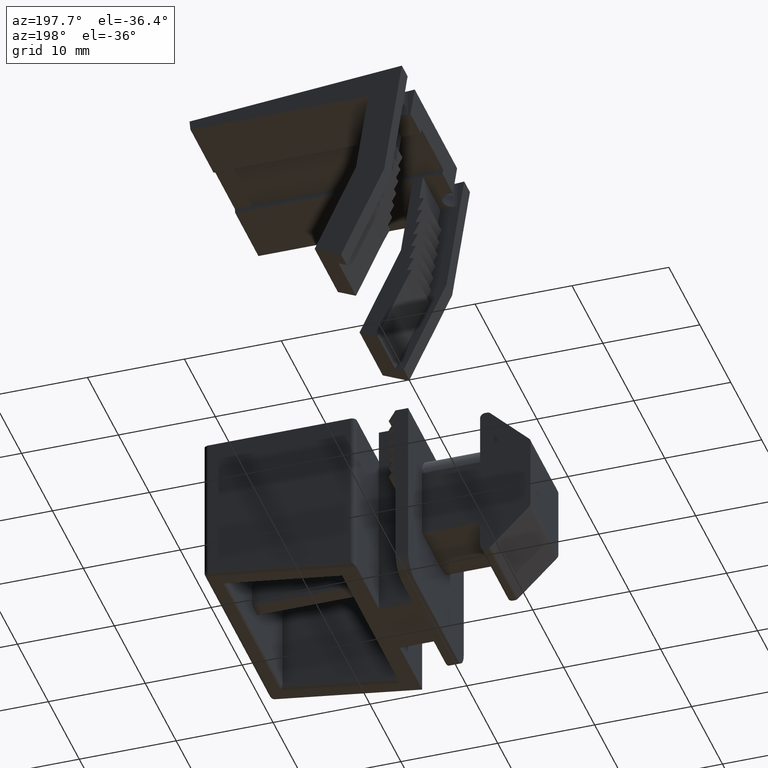
[diagram: clean part render]
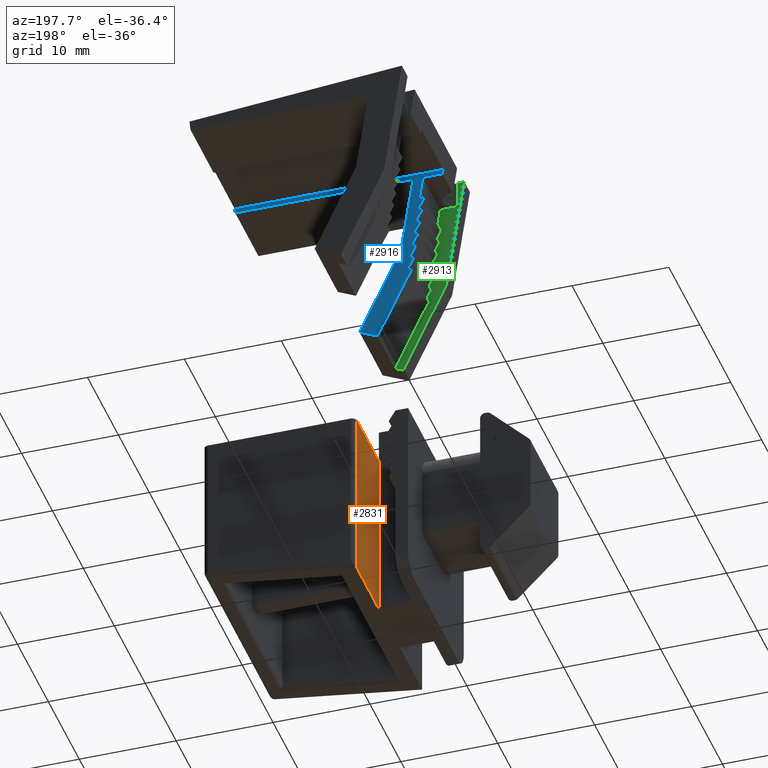
[diagram: same view with three faces highlighted in distinct colors, each labeled with its STEP entity id]
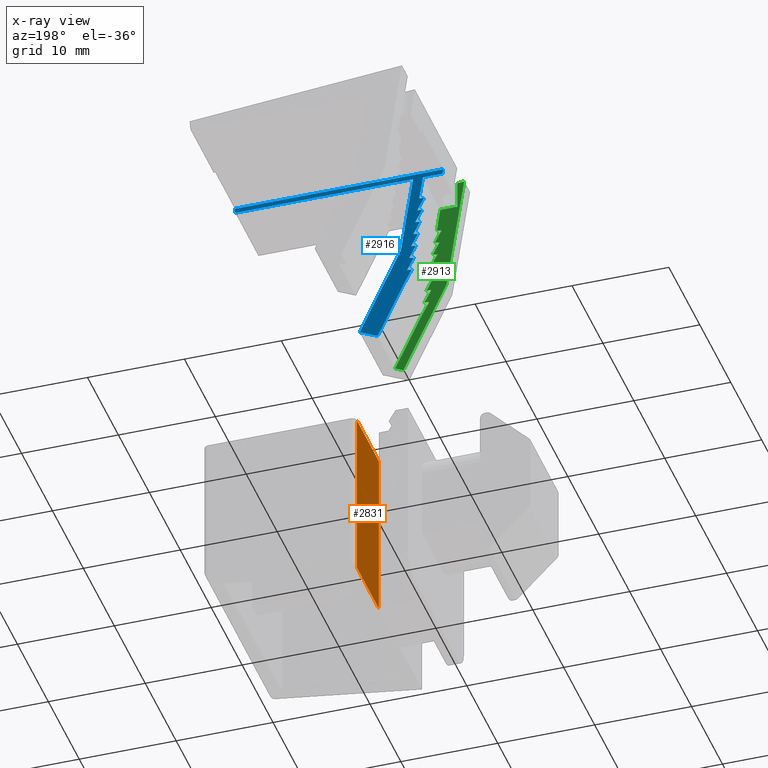
[diagram: x-ray of the same camera — body ghosted, the three highlighted faces saturated]
A machine part, auxiliary view with three faces highlighted in distinct colors.
The next image is the same camera in x-ray (body ghosted, the three faces saturated) — at least one of them is partly hidden behind the body in this view.
Their STEP definitions:

[orange] entity #2831 — the highlighted planar face has unit normal (-1, 0, 0).
#57=PLANE('',#3021);
#204=FACE_OUTER_BOUND('',#354,.T.);
#354=EDGE_LOOP('',(#2173,#2174,#2175,#2176));
#509=LINE('',#3933,#882);
#512=LINE('',#3951,#885);
#598=LINE('',#4177,#971);
#599=LINE('',#4178,#972);
#882=VECTOR('',#3163,7.1);
#885=VECTOR('',#3186,18.);
#971=VECTOR('',#3406,18.);
#972=VECTOR('',#3407,7.1);
#1255=VERTEX_POINT('',#3923);
#1259=VERTEX_POINT('',#3931);
#1264=VERTEX_POINT('',#3950);
#1337=VERTEX_POINT('',#4176);
#1533=EDGE_CURVE('',#1259,#1255,#509,.T.);
#1542=EDGE_CURVE('',#1255,#1264,#512,.T.);
#1654=EDGE_CURVE('',#1337,#1259,#598,.T.);
#1655=EDGE_CURVE('',#1264,#1337,#599,.T.);
#2173=ORIENTED_EDGE('',*,*,#1542,.F.);
#2174=ORIENTED_EDGE('',*,*,#1533,.F.);
#2175=ORIENTED_EDGE('',*,*,#1654,.F.);
#2176=ORIENTED_EDGE('',*,*,#1655,.F.);
#2831=ADVANCED_FACE('',(#204),#57,.T.);
#3021=AXIS2_PLACEMENT_3D('',#4175,#3404,#3405);
#3163=DIRECTION('',(0.,-1.,0.));
#3186=DIRECTION('',(0.,0.,-1.));
#3404=DIRECTION('center_axis',(-1.,0.,0.));
#3405=DIRECTION('ref_axis',(0.,0.,1.));
#3406=DIRECTION('',(0.,0.,1.));
#3407=DIRECTION('',(0.,1.,0.));
#3923=CARTESIAN_POINT('',(4.8,-10.5,19.5));
#3931=CARTESIAN_POINT('',(4.8,-3.4,19.5));
#3933=CARTESIAN_POINT('',(4.8,0.,19.5));
#3950=CARTESIAN_POINT('',(4.8,-10.5,1.5));
#3951=CARTESIAN_POINT('',(4.8,-10.5,5.73344712558717));
#4175=CARTESIAN_POINT('Origin',(4.8,0.,1.5));
#4176=CARTESIAN_POINT('',(4.8,-3.4,1.5));
#4177=CARTESIAN_POINT('',(4.8,-3.4,0.));
#4178=CARTESIAN_POINT('',(4.8,0.,1.5));

[blue] entity #2916 — the highlighted planar face has unit normal (0, -1, 0).
#140=PLANE('',#3111);
#289=FACE_OUTER_BOUND('',#440,.T.);
#440=EDGE_LOOP('',(#2635,#2636,#2637,#2638,#2639,#2640,#2641,#2642,#2643,
#2644,#2645,#2646,#2647,#2648,#2649,#2650,#2651,#2652,#2653,#2654,#2655,
#2656,#2657,#2658));
#712=LINE('',#4417,#1085);
#723=LINE('',#4438,#1096);
#724=LINE('',#4442,#1097);
#728=LINE('',#4450,#1101);
#735=LINE('',#4465,#1108);
#738=LINE('',#4471,#1111);
#744=LINE('',#4483,#1117);
#747=LINE('',#4489,#1120);
#753=LINE('',#4501,#1126);
#756=LINE('',#4507,#1129);
#762=LINE('',#4519,#1135);
#765=LINE('',#4525,#1138);
#771=LINE('',#4537,#1144);
#774=LINE('',#4543,#1147);
#780=LINE('',#4555,#1153);
#783=LINE('',#4561,#1156);
#789=LINE('',#4573,#1162);
#792=LINE('',#4578,#1165);
#835=LINE('',#4662,#1208);
#836=LINE('',#4664,#1209);
#837=LINE('',#4666,#1210);
#838=LINE('',#4668,#1211);
#839=LINE('',#4670,#1212);
#840=LINE('',#4671,#1213);
#1085=VECTOR('',#3620,2.02246162661022);
#1096=VECTOR('',#3635,0.505615406652557);
#1097=VECTOR('',#3638,1.51354429288694);
#1101=VECTOR('',#3644,0.5);
#1108=VECTOR('',#3655,0.5);
#1111=VECTOR('',#3660,1.51354429288694);
#1117=VECTOR('',#3670,1.51354429288693);
#1120=VECTOR('',#3675,0.5);
#1126=VECTOR('',#3685,0.500000000000001);
#1129=VECTOR('',#3690,1.51354429288694);
#1135=VECTOR('',#3700,1.51354429288693);
#1138=VECTOR('',#3705,0.5);
#1144=VECTOR('',#3715,0.5);
#1147=VECTOR('',#3720,1.51354429288694);
#1153=VECTOR('',#3730,1.51354429288694);
#1156=VECTOR('',#3735,6.59999660380867);
#1162=VECTOR('',#3745,0.5);
#1165=VECTOR('',#3750,2.5);
#1208=VECTOR('',#3823,21.5101234316413);
#1209=VECTOR('',#3824,0.501909918771676);
#1210=VECTOR('',#3825,18.3575405393417);
#1211=VECTOR('',#3826,8.5);
#1212=VECTOR('',#3827,9.99999999999999);
#1213=VECTOR('',#3828,2.06403166974845);
#1412=VERTEX_POINT('',#4414);
#1413=VERTEX_POINT('',#4416);
#1421=VERTEX_POINT('',#4436);
#1422=VERTEX_POINT('',#4440);
#1423=VERTEX_POINT('',#4441);
#1426=VERTEX_POINT('',#4449);
#1432=VERTEX_POINT('',#4464);
#1434=VERTEX_POINT('',#4470);
#1438=VERTEX_POINT('',#4482);
#1440=VERTEX_POINT('',#4488);
#1444=VERTEX_POINT('',#4500);
#1446=VERTEX_POINT('',#4506);
#1450=VERTEX_POINT('',#4518);
#1452=VERTEX_POINT('',#4524);
#1456=VERTEX_POINT('',#4536);
#1458=VERTEX_POINT('',#4542);
#1462=VERTEX_POINT('',#4554);
#1464=VERTEX_POINT('',#4560);
#1468=VERTEX_POINT('',#4572);
#1495=VERTEX_POINT('',#4661);
#1496=VERTEX_POINT('',#4663);
#1497=VERTEX_POINT('',#4665);
#1498=VERTEX_POINT('',#4667);
#1499=VERTEX_POINT('',#4669);
#1772=EDGE_CURVE('',#1413,#1412,#712,.T.);
#1783=EDGE_CURVE('',#1421,#1412,#723,.T.);
#1784=EDGE_CURVE('',#1422,#1423,#724,.T.);
#1788=EDGE_CURVE('',#1426,#1422,#728,.T.);
#1795=EDGE_CURVE('',#1423,#1432,#735,.T.);
#1798=EDGE_CURVE('',#1434,#1426,#738,.T.);
#1804=EDGE_CURVE('',#1432,#1438,#744,.T.);
#1807=EDGE_CURVE('',#1440,#1434,#747,.T.);
#1813=EDGE_CURVE('',#1438,#1444,#753,.T.);
#1816=EDGE_CURVE('',#1446,#1440,#756,.T.);
#1822=EDGE_CURVE('',#1444,#1450,#762,.T.);
#1825=EDGE_CURVE('',#1452,#1446,#765,.T.);
#1831=EDGE_CURVE('',#1450,#1456,#771,.T.);
#1834=EDGE_CURVE('',#1458,#1452,#774,.T.);
#1840=EDGE_CURVE('',#1456,#1462,#780,.T.);
#1843=EDGE_CURVE('',#1464,#1458,#783,.T.);
#1849=EDGE_CURVE('',#1462,#1468,#789,.T.);
#1852=EDGE_CURVE('',#1468,#1413,#792,.T.);
#1895=EDGE_CURVE('',#1495,#1421,#835,.T.);
#1896=EDGE_CURVE('',#1496,#1495,#836,.T.);
#1897=EDGE_CURVE('',#1497,#1496,#837,.T.);
#1898=EDGE_CURVE('',#1498,#1497,#838,.T.);
#1899=EDGE_CURVE('',#1499,#1498,#839,.T.);
#1900=EDGE_CURVE('',#1464,#1499,#840,.T.);
#2635=ORIENTED_EDGE('',*,*,#1843,.T.);
#2636=ORIENTED_EDGE('',*,*,#1834,.T.);
#2637=ORIENTED_EDGE('',*,*,#1825,.T.);
#2638=ORIENTED_EDGE('',*,*,#1816,.T.);
#2639=ORIENTED_EDGE('',*,*,#1807,.T.);
#2640=ORIENTED_EDGE('',*,*,#1798,.T.);
#2641=ORIENTED_EDGE('',*,*,#1788,.T.);
#2642=ORIENTED_EDGE('',*,*,#1784,.T.);
#2643=ORIENTED_EDGE('',*,*,#1795,.T.);
#2644=ORIENTED_EDGE('',*,*,#1804,.T.);
#2645=ORIENTED_EDGE('',*,*,#1813,.T.);
#2646=ORIENTED_EDGE('',*,*,#1822,.T.);
#2647=ORIENTED_EDGE('',*,*,#1831,.T.);
#2648=ORIENTED_EDGE('',*,*,#1840,.T.);
#2649=ORIENTED_EDGE('',*,*,#1849,.T.);
#2650=ORIENTED_EDGE('',*,*,#1852,.T.);
#2651=ORIENTED_EDGE('',*,*,#1772,.T.);
#2652=ORIENTED_EDGE('',*,*,#1783,.F.);
#2653=ORIENTED_EDGE('',*,*,#1895,.F.);
#2654=ORIENTED_EDGE('',*,*,#1896,.F.);
#2655=ORIENTED_EDGE('',*,*,#1897,.F.);
#2656=ORIENTED_EDGE('',*,*,#1898,.F.);
#2657=ORIENTED_EDGE('',*,*,#1899,.F.);
#2658=ORIENTED_EDGE('',*,*,#1900,.F.);
#2916=ADVANCED_FACE('',(#289),#140,.F.);
#3111=AXIS2_PLACEMENT_3D('',#4660,#3821,#3822);
#3620=DIRECTION('',(-1.,0.,0.));
#3635=DIRECTION('',(0.148623083142968,-0.988893917039173,0.));
#3638=DIRECTION('',(-0.466960664478303,0.884278088516266,0.));
#3644=DIRECTION('',(0.988893917039173,0.148623083142969,0.));
#3655=DIRECTION('',(0.988893917039173,0.148623083142967,0.));
#3660=DIRECTION('',(-0.466960664478303,0.884278088516266,0.));
#3670=DIRECTION('',(-0.466960664478303,0.884278088516266,0.));
#3675=DIRECTION('',(0.988893917039173,0.148623083142967,0.));
#3685=DIRECTION('',(0.988893917039173,0.148623083142969,0.));
#3690=DIRECTION('',(-0.466960664478303,0.884278088516267,0.));
#3700=DIRECTION('',(-0.466960664478303,0.884278088516266,0.));
#3705=DIRECTION('',(0.988893917039173,0.148623083142967,0.));
#3715=DIRECTION('',(0.988893917039173,0.148623083142968,0.));
#3720=DIRECTION('',(-0.466960664478303,0.884278088516266,0.));
#3730=DIRECTION('',(-0.466960664478303,0.884278088516266,0.));
#3735=DIRECTION('',(-0.426511671735571,0.904482058347941,0.));
#3745=DIRECTION('',(0.988893917039173,0.148623083142967,0.));
#3750=DIRECTION('',(-0.148623083142968,0.988893917039173,0.));
#3821=DIRECTION('center_axis',(0.,0.,1.));
#3822=DIRECTION('ref_axis',(1.,0.,0.));
#3823=DIRECTION('',(-1.,6.45174717472811E-18,0.));
#3824=DIRECTION('',(0.0871557427476577,0.996194698091746,0.));
#3825=DIRECTION('',(1.,0.,0.));
#3826=DIRECTION('',(-0.148623083142968,0.988893917039173,0.));
#3827=DIRECTION('',(-0.426511671735571,0.904482058347941,0.));
#3828=DIRECTION('',(0.904482058347941,0.426511671735571,0.));
#4414=CARTESIAN_POINT('',(-3.03369243991533,0.,3.5));
#4416=CARTESIAN_POINT('',(-1.01123081330511,0.,3.5));
#4417=CARTESIAN_POINT('',(1.78552160355044,0.,3.5));
#4436=CARTESIAN_POINT('',(-3.10883856053662,0.500000000000002,3.5));
#4438=CARTESIAN_POINT('',(-2.812631945661,-1.47087096730116,3.5));
#4440=CARTESIAN_POINT('',(0.20960165536927,-8.12305717567892,3.5));
#4441=CARTESIAN_POINT('',(-0.497163993354557,-6.78466312148015,3.5));
#4442=CARTESIAN_POINT('',(0.00913192064465107,-7.74342992372248,3.5));
#4449=CARTESIAN_POINT('',(-0.284845303150317,-8.1973687172504,3.5));
#4450=CARTESIAN_POINT('',(2.34145967696977,-7.80265545560161,3.5));
#4464=CARTESIAN_POINT('',(-0.00271703483497039,-6.71035157990867,3.5));
#4465=CARTESIAN_POINT('',(2.12914098676552,-6.38994985983137,3.5));
#4470=CARTESIAN_POINT('',(0.42192034557351,-9.53576277144917,3.5));
#4471=CARTESIAN_POINT('',(-0.0933670500525913,-8.55996890292313,3.5));
#4482=CARTESIAN_POINT('',(-0.709482683558797,-5.37195752570991,3.5));
#4483=CARTESIAN_POINT('',(0.111630891341893,-6.92689094452184,3.5));
#4488=CARTESIAN_POINT('',(-0.0725266129460765,-9.61007431302065,3.5));
#4489=CARTESIAN_POINT('',(2.553778367174,-9.21536105137186,3.5));
#4500=CARTESIAN_POINT('',(-0.21503572503921,-5.29764598413843,3.5));
#4501=CARTESIAN_POINT('',(1.91682229656128,-4.97724426406112,3.5));
#4506=CARTESIAN_POINT('',(0.63423903577775,-10.9484683672194,3.5));
#4507=CARTESIAN_POINT('',(-0.195866020749833,-9.37650788212377,3.5));
#4518=CARTESIAN_POINT('',(-0.921801373763037,-3.95925192993966,3.5));
#4519=CARTESIAN_POINT('',(0.214129862039134,-6.1103519653212,3.5));
#4524=CARTESIAN_POINT('',(0.139792077258164,-11.0227799087909,3.5));
#4525=CARTESIAN_POINT('',(2.76609705737824,-10.6280666471421,3.5));
#4536=CARTESIAN_POINT('',(-0.42735441524345,-3.88494038836818,3.5));
#4537=CARTESIAN_POINT('',(1.70450360635704,-3.56453866829087,3.5));
#4542=CARTESIAN_POINT('',(0.84655772598199,-12.3611739629897,3.5));
#4543=CARTESIAN_POINT('',(-0.298364991447074,-10.1930468613244,3.5));
#4554=CARTESIAN_POINT('',(-1.13412006396728,-2.54654633416942,3.5));
#4555=CARTESIAN_POINT('',(0.316628832736376,-5.29381298612056,3.5));
#4560=CARTESIAN_POINT('',(3.66153331092152,-18.3307524762919,3.5));
#4561=CARTESIAN_POINT('',(1.14368098200046,-12.9912684527678,3.5));
#4572=CARTESIAN_POINT('',(-0.639673105447691,-2.47223479259793,3.5));
#4573=CARTESIAN_POINT('',(1.49218491615281,-2.15183307252063,3.5));
#4578=CARTESIAN_POINT('',(-0.407781043381144,-4.01517579972727,3.5));
#4660=CARTESIAN_POINT('Origin',(4.58227402040598,-4.84300182513052,3.5));
#4661=CARTESIAN_POINT('',(18.4012848711046,0.500000000000001,3.5));
#4662=CARTESIAN_POINT('',(18.4012848711046,0.500000000000001,3.5));
#4663=CARTESIAN_POINT('',(18.3575405393417,0.,3.5));
#4664=CARTESIAN_POINT('',(18.0949766161792,-3.0011193745652,3.5));
#4665=CARTESIAN_POINT('',(0.,0.,3.5));
#4666=CARTESIAN_POINT('',(2.29113701020299,0.,3.5));
#4667=CARTESIAN_POINT('',(1.26329620671523,-8.40559829483297,3.5));
#4668=CARTESIAN_POINT('',(1.0381505712199,-6.90754600927331,3.5));
#4669=CARTESIAN_POINT('',(5.52841292407093,-17.4504188783124,3.5));
#4670=CARTESIAN_POINT('',(3.01056059514988,-12.1109348547882,3.5));
#4671=CARTESIAN_POINT('',(6.2164727136376,-17.125961882849,3.5));

[green] entity #2913 — the highlighted planar face has unit normal (0, -1, 0).
#137=PLANE('',#3108);
#286=FACE_OUTER_BOUND('',#437,.T.);
#437=EDGE_LOOP('',(#2603,#2604,#2605,#2606,#2607,#2608,#2609,#2610,#2611,
#2612,#2613,#2614,#2615,#2616,#2617,#2618,#2619,#2620,#2621,#2622,#2623,
#2624));
#705=LINE('',#4397,#1078);
#714=LINE('',#4420,#1087);
#726=LINE('',#4446,#1099);
#730=LINE('',#4453,#1103);
#736=LINE('',#4467,#1109);
#740=LINE('',#4474,#1113);
#745=LINE('',#4485,#1118);
#749=LINE('',#4492,#1122);
#754=LINE('',#4503,#1127);
#758=LINE('',#4510,#1131);
#763=LINE('',#4521,#1136);
#767=LINE('',#4528,#1140);
#772=LINE('',#4539,#1145);
#776=LINE('',#4546,#1149);
#781=LINE('',#4557,#1154);
#785=LINE('',#4564,#1158);
#790=LINE('',#4575,#1163);
#793=LINE('',#4579,#1166);
#826=LINE('',#4645,#1199);
#827=LINE('',#4647,#1200);
#828=LINE('',#4648,#1201);
#829=LINE('',#4649,#1202);
#1078=VECTOR('',#3603,2.85237897407208);
#1087=VECTOR('',#3622,1.76035626262396);
#1099=VECTOR('',#3640,1.51354429288694);
#1103=VECTOR('',#3646,0.5);
#1109=VECTOR('',#3656,0.5);
#1113=VECTOR('',#3662,1.51354429288694);
#1118=VECTOR('',#3671,1.51354429288693);
#1122=VECTOR('',#3677,0.5);
#1127=VECTOR('',#3686,0.5);
#1131=VECTOR('',#3692,1.51354429288694);
#1136=VECTOR('',#3701,1.51354429288693);
#1140=VECTOR('',#3707,0.5);
#1145=VECTOR('',#3716,0.5);
#1149=VECTOR('',#3722,1.51354429288694);
#1154=VECTOR('',#3731,1.51354429288694);
#1158=VECTOR('',#3737,6.59999660380867);
#1163=VECTOR('',#3746,0.5);
#1166=VECTOR('',#3751,2.5);
#1199=VECTOR('',#3808,10.4403065089105);
#1200=VECTOR('',#3809,12.3375266051042);
#1201=VECTOR('',#3810,0.702673886280343);
#1202=VECTOR('',#3811,0.935968330251548);
#1404=VERTEX_POINT('',#4393);
#1405=VERTEX_POINT('',#4395);
#1414=VERTEX_POINT('',#4418);
#1424=VERTEX_POINT('',#4443);
#1425=VERTEX_POINT('',#4445);
#1427=VERTEX_POINT('',#4451);
#1433=VERTEX_POINT('',#4466);
#1435=VERTEX_POINT('',#4472);
#1439=VERTEX_POINT('',#4484);
#1441=VERTEX_POINT('',#4490);
#1445=VERTEX_POINT('',#4502);
#1447=VERTEX_POINT('',#4508);
#1451=VERTEX_POINT('',#4520);
#1453=VERTEX_POINT('',#4526);
#1457=VERTEX_POINT('',#4538);
#1459=VERTEX_POINT('',#4544);
#1463=VERTEX_POINT('',#4556);
#1465=VERTEX_POINT('',#4562);
#1469=VERTEX_POINT('',#4574);
#1489=VERTEX_POINT('',#4643);
#1490=VERTEX_POINT('',#4644);
#1491=VERTEX_POINT('',#4646);
#1763=EDGE_CURVE('',#1405,#1404,#705,.T.);
#1774=EDGE_CURVE('',#1414,#1405,#714,.T.);
#1786=EDGE_CURVE('',#1424,#1425,#726,.T.);
#1790=EDGE_CURVE('',#1427,#1424,#730,.T.);
#1796=EDGE_CURVE('',#1425,#1433,#736,.T.);
#1800=EDGE_CURVE('',#1435,#1427,#740,.T.);
#1805=EDGE_CURVE('',#1433,#1439,#745,.T.);
#1809=EDGE_CURVE('',#1441,#1435,#749,.T.);
#1814=EDGE_CURVE('',#1439,#1445,#754,.T.);
#1818=EDGE_CURVE('',#1447,#1441,#758,.T.);
#1823=EDGE_CURVE('',#1445,#1451,#763,.T.);
#1827=EDGE_CURVE('',#1453,#1447,#767,.T.);
#1832=EDGE_CURVE('',#1451,#1457,#772,.T.);
#1836=EDGE_CURVE('',#1459,#1453,#776,.T.);
#1841=EDGE_CURVE('',#1457,#1463,#781,.T.);
#1845=EDGE_CURVE('',#1465,#1459,#785,.T.);
#1850=EDGE_CURVE('',#1463,#1469,#790,.T.);
#1853=EDGE_CURVE('',#1469,#1414,#793,.T.);
#1886=EDGE_CURVE('',#1489,#1490,#826,.T.);
#1887=EDGE_CURVE('',#1491,#1489,#827,.T.);
#1888=EDGE_CURVE('',#1404,#1491,#828,.T.);
#1889=EDGE_CURVE('',#1490,#1465,#829,.T.);
#2603=ORIENTED_EDGE('',*,*,#1886,.F.);
#2604=ORIENTED_EDGE('',*,*,#1887,.F.);
#2605=ORIENTED_EDGE('',*,*,#1888,.F.);
#2606=ORIENTED_EDGE('',*,*,#1763,.F.);
#2607=ORIENTED_EDGE('',*,*,#1774,.F.);
#2608=ORIENTED_EDGE('',*,*,#1853,.F.);
#2609=ORIENTED_EDGE('',*,*,#1850,.F.);
#2610=ORIENTED_EDGE('',*,*,#1841,.F.);
#2611=ORIENTED_EDGE('',*,*,#1832,.F.);
#2612=ORIENTED_EDGE('',*,*,#1823,.F.);
#2613=ORIENTED_EDGE('',*,*,#1814,.F.);
#2614=ORIENTED_EDGE('',*,*,#1805,.F.);
#2615=ORIENTED_EDGE('',*,*,#1796,.F.);
#2616=ORIENTED_EDGE('',*,*,#1786,.F.);
#2617=ORIENTED_EDGE('',*,*,#1790,.F.);
#2618=ORIENTED_EDGE('',*,*,#1800,.F.);
#2619=ORIENTED_EDGE('',*,*,#1809,.F.);
#2620=ORIENTED_EDGE('',*,*,#1818,.F.);
#2621=ORIENTED_EDGE('',*,*,#1827,.F.);
#2622=ORIENTED_EDGE('',*,*,#1836,.F.);
#2623=ORIENTED_EDGE('',*,*,#1845,.F.);
#2624=ORIENTED_EDGE('',*,*,#1889,.F.);
#2913=ADVANCED_FACE('',(#286),#137,.F.);
#3108=AXIS2_PLACEMENT_3D('',#4642,#3806,#3807);
#3603=DIRECTION('',(0.,1.,0.));
#3622=DIRECTION('',(-1.,0.,0.));
#3640=DIRECTION('',(-0.466960664478303,0.884278088516267,0.));
#3646=DIRECTION('',(0.988893917039173,0.148623083142969,0.));
#3656=DIRECTION('',(0.988893917039173,0.148623083142967,0.));
#3662=DIRECTION('',(-0.466960664478303,0.884278088516266,0.));
#3671=DIRECTION('',(-0.466960664478303,0.884278088516266,0.));
#3677=DIRECTION('',(0.988893917039173,0.148623083142967,0.));
#3686=DIRECTION('',(0.988893917039173,0.148623083142969,0.));
#3692=DIRECTION('',(-0.466960664478303,0.884278088516267,0.));
#3701=DIRECTION('',(-0.466960664478303,0.884278088516266,0.));
#3707=DIRECTION('',(0.988893917039173,0.148623083142967,0.));
#3716=DIRECTION('',(0.988893917039173,0.148623083142968,0.));
#3722=DIRECTION('',(-0.466960664478303,0.884278088516266,0.));
#3731=DIRECTION('',(-0.466960664478303,0.884278088516266,0.));
#3737=DIRECTION('',(-0.426511671735571,0.904482058347941,0.));
#3746=DIRECTION('',(0.988893917039173,0.148623083142967,0.));
#3751=DIRECTION('',(-0.148623083142968,0.988893917039173,0.));
#3806=DIRECTION('center_axis',(0.,0.,1.));
#3807=DIRECTION('ref_axis',(1.,0.,0.));
#3808=DIRECTION('',(0.426511671735571,-0.904482058347941,0.));
#3809=DIRECTION('',(0.148623083142968,-0.988893917039173,0.));
#3810=DIRECTION('',(-0.996194698091746,0.0871557427476581,0.));
#3811=DIRECTION('',(0.904482058347941,0.426511671735571,0.));
#4393=CARTESIAN_POINT('',(-2.77158707592907,2.85237897407208,9.15));
#4395=CARTESIAN_POINT('',(-2.77158707592907,0.,9.15));
#4397=CARTESIAN_POINT('',(-2.77158707592907,0.,9.15));
#4418=CARTESIAN_POINT('',(-1.01123081330511,0.,9.15));
#4420=CARTESIAN_POINT('',(-1.01123081330511,0.,9.15));
#4443=CARTESIAN_POINT('',(0.20960165536927,-8.12305717567892,9.15));
#4445=CARTESIAN_POINT('',(-0.497163993354557,-6.78466312148015,9.15));
#4446=CARTESIAN_POINT('',(0.20960165536927,-8.12305717567892,9.15));
#4451=CARTESIAN_POINT('',(-0.284845303150317,-8.1973687172504,9.15));
#4453=CARTESIAN_POINT('',(-0.284845303150317,-8.1973687172504,9.15));
#4466=CARTESIAN_POINT('',(-0.00271703483497032,-6.71035157990867,9.15));
#4467=CARTESIAN_POINT('',(-0.497163993354557,-6.78466312148015,9.15));
#4472=CARTESIAN_POINT('',(0.42192034557351,-9.53576277144917,9.15));
#4474=CARTESIAN_POINT('',(0.42192034557351,-9.53576277144917,9.15));
#4484=CARTESIAN_POINT('',(-0.709482683558797,-5.37195752570991,9.15));
#4485=CARTESIAN_POINT('',(-0.00271703483497032,-6.71035157990867,9.15));
#4490=CARTESIAN_POINT('',(-0.0725266129460767,-9.61007431302065,9.15));
#4492=CARTESIAN_POINT('',(-0.0725266129460765,-9.61007431302065,9.15));
#4502=CARTESIAN_POINT('',(-0.21503572503921,-5.29764598413843,9.15));
#4503=CARTESIAN_POINT('',(-0.709482683558797,-5.37195752570991,9.15));
#4508=CARTESIAN_POINT('',(0.63423903577775,-10.9484683672194,9.15));
#4510=CARTESIAN_POINT('',(0.63423903577775,-10.9484683672194,9.15));
#4520=CARTESIAN_POINT('',(-0.921801373763037,-3.95925192993966,9.15));
#4521=CARTESIAN_POINT('',(-0.21503572503921,-5.29764598413843,9.15));
#4526=CARTESIAN_POINT('',(0.139792077258164,-11.0227799087909,9.15));
#4528=CARTESIAN_POINT('',(0.139792077258164,-11.0227799087909,9.15));
#4538=CARTESIAN_POINT('',(-0.42735441524345,-3.88494038836818,9.15));
#4539=CARTESIAN_POINT('',(-0.921801373763037,-3.95925192993966,9.15));
#4544=CARTESIAN_POINT('',(0.84655772598199,-12.3611739629897,9.15));
#4546=CARTESIAN_POINT('',(0.84655772598199,-12.3611739629897,9.15));
#4556=CARTESIAN_POINT('',(-1.13412006396728,-2.54654633416942,9.15));
#4557=CARTESIAN_POINT('',(-0.42735441524345,-3.88494038836818,9.15));
#4562=CARTESIAN_POINT('',(3.66153331092152,-18.3307524762919,9.15));
#4564=CARTESIAN_POINT('',(3.66153331092152,-18.3307524762919,9.15));
#4574=CARTESIAN_POINT('',(-0.639673105447691,-2.47223479259793,9.15));
#4575=CARTESIAN_POINT('',(-1.13412006396728,-2.54654633416942,9.15));
#4579=CARTESIAN_POINT('',(-0.639673105447691,-2.47223479259793,9.15));
#4642=CARTESIAN_POINT('Origin',(-0.1399680094277,-9.00658904023213,9.15));
#4643=CARTESIAN_POINT('',(-1.63794583352009,-9.28688397255627,9.15));
#4644=CARTESIAN_POINT('',(2.81496674902711,-18.7299538935191,9.15));
#4645=CARTESIAN_POINT('',(-1.55576059817096,-9.46117010763882,9.15));
#4646=CARTESIAN_POINT('',(-3.47158707592907,2.91362103854022,9.15));
#4647=CARTESIAN_POINT('',(-3.25747604600369,1.48898974583235,9.15));
#4648=CARTESIAN_POINT('',(7.61304084901877,1.9438417557044,9.15));
#4649=CARTESIAN_POINT('',(3.48177042572418,-18.4155202922745,9.15));